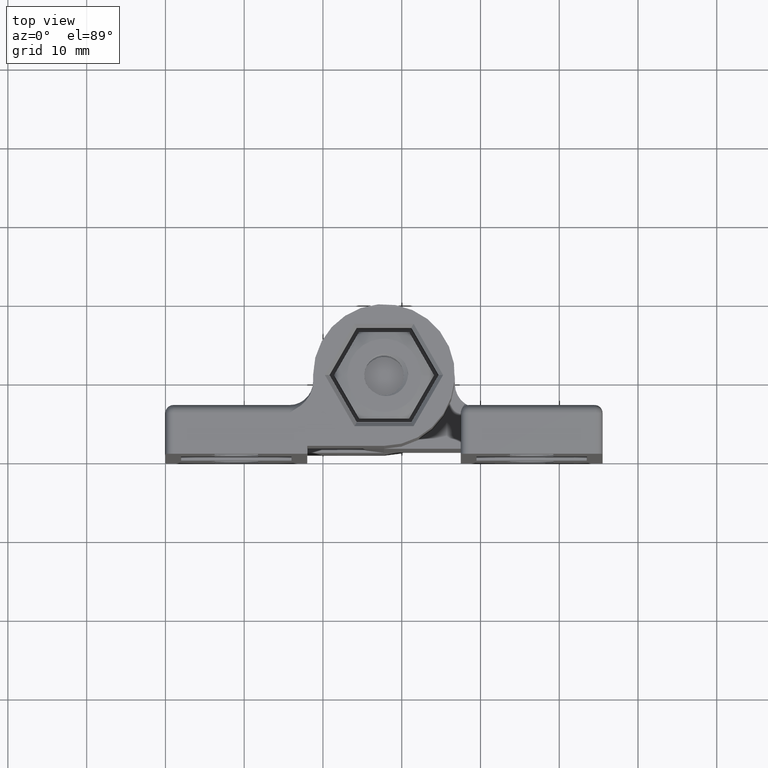
[diagram: clean part render]
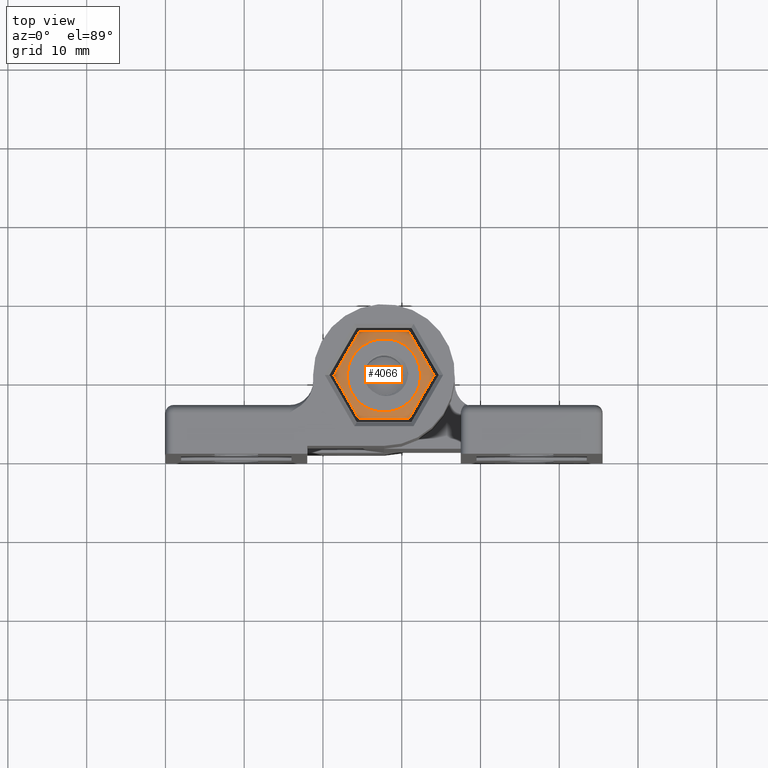
[diagram: same view with one face highlighted and labeled with its STEP entity id]
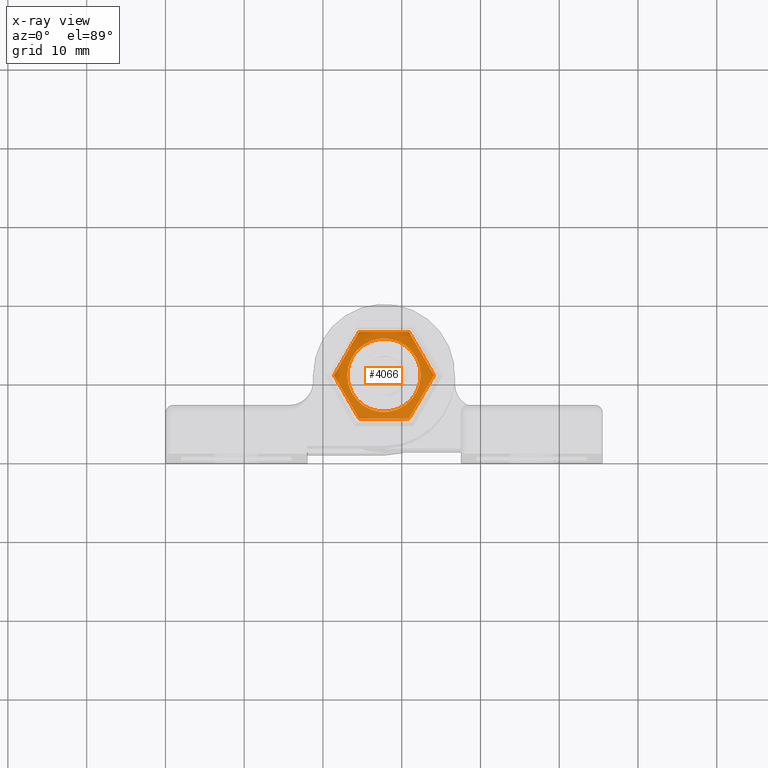
[diagram: x-ray of the same camera — body ghosted, the highlighted face saturated]
A machine part, top view. The second image highlights one B-rep face of the part: STEP entity #4066.
The next image is the same camera in x-ray: the body ghosted, the highlighted face saturated — about 0% of this face is hidden behind the body in this view.
In plain terms, the highlighted face is a freeform B-spline surface patch.
Its self-contained STEP definition (entity closure, byte-faithful):
#30=(
BOUNDED_SURFACE()
B_SPLINE_SURFACE(5,2,((#7594,#7595,#7596,#7597,#7598,#7599,#7600,#7601,
#7602),(#7603,#7604,#7605,#7606,#7607,#7608,#7609,#7610,#7611),(#7612,#7613,
#7614,#7615,#7616,#7617,#7618,#7619,#7620),(#7621,#7622,#7623,#7624,#7625,
#7626,#7627,#7628,#7629),(#7630,#7631,#7632,#7633,#7634,#7635,#7636,#7637,
#7638),(#7639,#7640,#7641,#7642,#7643,#7644,#7645,#7646,#7647),(#7648,#7649,
#7650,#7651,#7652,#7653,#7654,#7655,#7656),(#7657,#7658,#7659,#7660,#7661,
#7662,#7663,#7664,#7665),(#7666,#7667,#7668,#7669,#7670,#7671,#7672,#7673,
#7674),(#7675,#7676,#7677,#7678,#7679,#7680,#7681,#7682,#7683),(#7684,#7685,
#7686,#7687,#7688,#7689,#7690,#7691,#7692),(#7693,#7694,#7695,#7696,#7697,
#7698,#7699,#7700,#7701),(#7702,#7703,#7704,#7705,#7706,#7707,#7708,#7709,
#7710),(#7711,#7712,#7713,#7714,#7715,#7716,#7717,#7718,#7719),(#7720,#7721,
#7722,#7723,#7724,#7725,#7726,#7727,#7728)),.UNSPECIFIED.,.F.,.T.,.F.)
B_SPLINE_SURFACE_WITH_KNOTS((6,1,1,1,1,1,1,1,1,1,6),(3,2,2,2,3),(-1.,-0.9,
-0.8,-0.7,-0.6,-0.5,-0.4,-0.3,-0.2,-0.1,0.),(0.,1.5707963267949,3.14159265358979,
4.71238898038469,6.28318530717959),.UNSPECIFIED.)
GEOMETRIC_REPRESENTATION_ITEM()
RATIONAL_B_SPLINE_SURFACE(((1.,0.707106781186548,1.,0.707106781186548,1.,
0.707106781186548,1.,0.707106781186548,1.),(1.,0.707106781186548,1.,0.707106781186548,
1.,0.707106781186548,1.,0.707106781186548,1.),(1.,0.707106781186548,1.,
0.707106781186548,1.,0.707106781186548,1.,0.707106781186548,1.),(1.,0.707106781186548,
1.,0.707106781186548,1.,0.707106781186548,1.,0.707106781186548,1.),(1.,
0.707106781186548,1.,0.707106781186548,1.,0.707106781186548,1.,0.707106781186548,
1.),(1.,0.707106781186548,1.,0.707106781186548,1.,0.707106781186548,1.,
0.707106781186548,1.),(1.,0.707106781186548,1.,0.707106781186548,1.,0.707106781186548,
1.,0.707106781186548,1.),(1.,0.707106781186548,1.,0.707106781186548,1.,
0.707106781186548,1.,0.707106781186548,1.),(1.,0.707106781186548,1.,0.707106781186548,
1.,0.707106781186548,1.,0.707106781186548,1.),(1.,0.707106781186548,1.,
0.707106781186548,1.,0.707106781186548,1.,0.707106781186548,1.),(1.,0.707106781186548,
1.,0.707106781186548,1.,0.707106781186548,1.,0.707106781186548,1.),(1.,
0.707106781186548,1.,0.707106781186548,1.,0.707106781186548,1.,0.707106781186548,
1.),(1.,0.707106781186548,1.,0.707106781186548,1.,0.707106781186548,1.,
0.707106781186548,1.),(1.,0.707106781186548,1.,0.707106781186548,1.,0.707106781186548,
1.,0.707106781186548,1.),(1.,0.707106781186548,1.,0.707106781186548,1.,
0.707106781186548,1.,0.707106781186548,1.)))
REPRESENTATION_ITEM('')
SURFACE()
);
#204=B_SPLINE_CURVE_WITH_KNOTS('',3,(#7731,#7732,#7733,#7734,#7735,#7736,
#7737,#7738,#7739,#7740,#7741,#7742,#7743,#7744,#7745,#7746,#7747,#7748,
#7749,#7750,#7751,#7752,#7753,#7754,#7755,#7756,#7757,#7758,#7759,#7760),
 .UNSPECIFIED.,.F.,.F.,(4,2,2,2,2,2,2,2,2,2,2,2,2,2,4),(-0.57262143947361,
-0.544323975707917,-0.509345984304619,-0.405398877690966,-0.354201182749077,
-0.320544612601947,-0.303102496328077,-0.292069094247138,-0.281915798303013,
-0.268778627106336,-0.243616223191977,-0.19038933576326,-0.0875683167784504,
-0.0373943914692187,0.),.UNSPECIFIED.);
#205=B_SPLINE_CURVE_WITH_KNOTS('',3,(#7762,#7763,#7764,#7765,#7766,#7767,
#7768,#7769,#7770,#7771,#7772,#7773,#7774,#7775,#7776,#7777,#7778,#7779,
#7780,#7781,#7782,#7783,#7784,#7785,#7786,#7787,#7788,#7789,#7790,#7791),
 .UNSPECIFIED.,.F.,.F.,(4,2,2,2,2,2,2,2,2,2,2,2,2,2,4),(-0.573362088269785,
-0.542602238559122,-0.50381871411048,-0.396212267046608,-0.338543031039156,
-0.317844158797585,-0.299883978042234,-0.287563767466687,-0.275705419056114,
-0.260109085149373,-0.230192115821317,-0.168206720946711,-0.0638537788719701,
-0.0285646964578487,0.),.UNSPECIFIED.);
#206=B_SPLINE_CURVE_WITH_KNOTS('',3,(#7793,#7794,#7795,#7796,#7797,#7798,
#7799,#7800,#7801,#7802,#7803,#7804,#7805,#7806,#7807,#7808,#7809,#7810,
#7811,#7812,#7813,#7814,#7815,#7816,#7817,#7818,#7819,#7820,#7821,#7822),
 .UNSPECIFIED.,.F.,.F.,(4,2,2,2,2,2,2,2,2,2,2,2,2,2,4),(-0.571678990613345,
-0.543799968565629,-0.509457830151419,-0.408440109942139,-0.355714174820462,
-0.321221593944074,-0.303503333603937,-0.292439259344689,-0.282358214313158,
-0.269453880748804,-0.244930116960784,-0.1936685102723,-0.0937651915670148,
-0.0395470754258455,0.),.UNSPECIFIED.);
#207=B_SPLINE_CURVE_WITH_KNOTS('',3,(#7824,#7825,#7826,#7827,#7828,#7829,
#7830,#7831,#7832,#7833,#7834,#7835,#7836,#7837,#7838,#7839,#7840,#7841,
#7842,#7843,#7844,#7845,#7846,#7847,#7848,#7849,#7850,#7851,#7852,#7853),
 .UNSPECIFIED.,.F.,.F.,(4,2,2,2,2,2,2,2,2,2,2,2,2,2,4),(-0.572621439472506,
-0.544323975707105,-0.509345984304233,-0.405398877692442,-0.354201182749778,
-0.320544612602306,-0.303102496328308,-0.292069094247381,-0.281915798303355,
-0.268778627106843,-0.243616223192848,-0.190389335765097,-0.0875683167820839,
-0.0373943914705066,0.),.UNSPECIFIED.);
#208=B_SPLINE_CURVE_WITH_KNOTS('',3,(#7855,#7856,#7857,#7858,#7859,#7860,
#7861,#7862,#7863,#7864,#7865,#7866,#7867,#7868,#7869,#7870,#7871,#7872,
#7873,#7874,#7875,#7876,#7877,#7878,#7879,#7880,#7881,#7882,#7883,#7884),
 .UNSPECIFIED.,.F.,.F.,(4,2,2,2,2,2,2,2,2,2,2,2,2,2,4),(-0.573362088269755,
-0.54260223856052,-0.503818714114182,-0.396212267048592,-0.338543031040155,
-0.317844158798268,-0.299883978042658,-0.287563767467003,-0.275705419056472,
-0.260109085149841,-0.230192115822064,-0.168206720948217,-0.0638537788723546,
-0.028564696458006,0.),.UNSPECIFIED.);
#209=B_SPLINE_CURVE_WITH_KNOTS('',3,(#7885,#7886,#7887,#7888,#7889,#7890,
#7891,#7892,#7893,#7894,#7895,#7896,#7897,#7898,#7899,#7900,#7901,#7902,
#7903,#7904,#7905,#7906,#7907,#7908,#7909,#7910,#7911,#7912,#7913,#7914),
 .UNSPECIFIED.,.F.,.F.,(4,2,2,2,2,2,2,2,2,2,2,2,2,2,4),(-0.571678990614367,
-0.543799968567537,-0.509457830154743,-0.408440109952833,-0.355714174826327,
-0.321221593947555,-0.303503333606371,-0.292439259346873,-0.28235821431552,
-0.269453880751784,-0.244930116965342,-0.19366851028104,-0.0937651915839698,
-0.0395470754316669,0.),.UNSPECIFIED.);
#210=B_SPLINE_CURVE_WITH_KNOTS('',3,(#7915,#7916,#7917,#7918,#7919,#7920,
#7921),.UNSPECIFIED.,.F.,.F.,(4,3,4),(0.,0.838384019627205,1.),
 .UNSPECIFIED.);
#632=FACE_OUTER_BOUND('',#831,.T.);
#831=EDGE_LOOP('',(#3143,#3144,#3145,#3146,#3147,#3148,#3149,#3150,#3151));
#1518=CIRCLE('',#4293,4.65860693610695);
#1731=VERTEX_POINT('',#7592);
#1732=VERTEX_POINT('',#7729);
#1733=VERTEX_POINT('',#7730);
#1734=VERTEX_POINT('',#7761);
#1735=VERTEX_POINT('',#7792);
#1736=VERTEX_POINT('',#7823);
#1737=VERTEX_POINT('',#7854);
#2290=EDGE_CURVE('',#1731,#1731,#1518,.T.);
#2291=EDGE_CURVE('',#1732,#1733,#204,.T.);
#2292=EDGE_CURVE('',#1734,#1732,#205,.T.);
#2293=EDGE_CURVE('',#1735,#1734,#206,.T.);
#2294=EDGE_CURVE('',#1736,#1735,#207,.T.);
#2295=EDGE_CURVE('',#1737,#1736,#208,.T.);
#2296=EDGE_CURVE('',#1733,#1737,#209,.T.);
#2297=EDGE_CURVE('',#1731,#1733,#210,.T.);
#3143=ORIENTED_EDGE('',*,*,#2291,.F.);
#3144=ORIENTED_EDGE('',*,*,#2292,.F.);
#3145=ORIENTED_EDGE('',*,*,#2293,.F.);
#3146=ORIENTED_EDGE('',*,*,#2294,.F.);
#3147=ORIENTED_EDGE('',*,*,#2295,.F.);
#3148=ORIENTED_EDGE('',*,*,#2296,.F.);
#3149=ORIENTED_EDGE('',*,*,#2297,.F.);
#3150=ORIENTED_EDGE('',*,*,#2290,.F.);
#3151=ORIENTED_EDGE('',*,*,#2297,.T.);
#4066=ADVANCED_FACE('',(#632),#30,.T.);
#4293=AXIS2_PLACEMENT_3D('',#7593,#4863,#4864);
#4863=DIRECTION('center_axis',(0.,0.,-1.));
#4864=DIRECTION('ref_axis',(1.,0.,0.));
#7592=CARTESIAN_POINT('',(4.65860693610695,0.,-2.9));
#7593=CARTESIAN_POINT('Origin',(0.,0.,-2.9));
#7594=CARTESIAN_POINT('Ctrl Pts',(6.35085296108588,0.,-2.04222966380796));
#7595=CARTESIAN_POINT('Ctrl Pts',(6.35085296108588,6.35085296108588,-2.04222966380796));
#7596=CARTESIAN_POINT('Ctrl Pts',(0.,6.35085296108588,-2.04222966380796));
#7597=CARTESIAN_POINT('Ctrl Pts',(-6.35085296108588,6.35085296108588,-2.04222966380796));
#7598=CARTESIAN_POINT('Ctrl Pts',(-6.35085296108588,0.,-2.04222966380796));
#7599=CARTESIAN_POINT('Ctrl Pts',(-6.35085296108588,-6.35085296108588,-2.04222966380796));
#7600=CARTESIAN_POINT('Ctrl Pts',(0.,-6.35085296108588,-2.04222966380796));
#7601=CARTESIAN_POINT('Ctrl Pts',(6.35085296108588,-6.35085296108588,-2.04222966380796));
#7602=CARTESIAN_POINT('Ctrl Pts',(6.35085296108588,0.,-2.04222966380796));
#7603=CARTESIAN_POINT('Ctrl Pts',(6.33857400149862,0.,-2.07148277389668));
#7604=CARTESIAN_POINT('Ctrl Pts',(6.33857400149862,6.33857400149862,-2.07148277389668));
#7605=CARTESIAN_POINT('Ctrl Pts',(0.,6.33857400149862,-2.07148277389668));
#7606=CARTESIAN_POINT('Ctrl Pts',(-6.33857400149862,6.33857400149862,-2.07148277389668));
#7607=CARTESIAN_POINT('Ctrl Pts',(-6.33857400149862,0.,-2.07148277389668));
#7608=CARTESIAN_POINT('Ctrl Pts',(-6.33857400149862,-6.33857400149862,-2.07148277389668));
#7609=CARTESIAN_POINT('Ctrl Pts',(0.,-6.33857400149862,-2.07148277389668));
#7610=CARTESIAN_POINT('Ctrl Pts',(6.33857400149862,-6.33857400149862,-2.07148277389668));
#7611=CARTESIAN_POINT('Ctrl Pts',(6.33857400149862,0.,-2.07148277389668));
#7612=CARTESIAN_POINT('Ctrl Pts',(6.31208573900583,0.,-2.12890614314292));
#7613=CARTESIAN_POINT('Ctrl Pts',(6.31208573900583,6.31208573900583,-2.12890614314292));
#7614=CARTESIAN_POINT('Ctrl Pts',(0.,6.31208573900583,-2.12890614314292));
#7615=CARTESIAN_POINT('Ctrl Pts',(-6.31208573900583,6.31208573900583,-2.12890614314292));
#7616=CARTESIAN_POINT('Ctrl Pts',(-6.31208573900583,0.,-2.12890614314292));
#7617=CARTESIAN_POINT('Ctrl Pts',(-6.31208573900583,-6.31208573900583,-2.12890614314292));
#7618=CARTESIAN_POINT('Ctrl Pts',(0.,-6.31208573900583,-2.12890614314292));
#7619=CARTESIAN_POINT('Ctrl Pts',(6.31208573900583,-6.31208573900583,-2.12890614314292));
#7620=CARTESIAN_POINT('Ctrl Pts',(6.31208573900583,0.,-2.12890614314292));
#7621=CARTESIAN_POINT('Ctrl Pts',(6.2665622407961,0.,-2.21179260241812));
#7622=CARTESIAN_POINT('Ctrl Pts',(6.2665622407961,6.2665622407961,-2.21179260241812));
#7623=CARTESIAN_POINT('Ctrl Pts',(0.,6.2665622407961,-2.21179260241812));
#7624=CARTESIAN_POINT('Ctrl Pts',(-6.2665622407961,6.2665622407961,-2.21179260241812));
#7625=CARTESIAN_POINT('Ctrl Pts',(-6.2665622407961,0.,-2.21179260241812));
#7626=CARTESIAN_POINT('Ctrl Pts',(-6.2665622407961,-6.2665622407961,-2.21179260241812));
#7627=CARTESIAN_POINT('Ctrl Pts',(0.,-6.2665622407961,-2.21179260241812));
#7628=CARTESIAN_POINT('Ctrl Pts',(6.2665622407961,-6.2665622407961,-2.21179260241812));
#7629=CARTESIAN_POINT('Ctrl Pts',(6.2665622407961,0.,-2.21179260241812));
#7630=CARTESIAN_POINT('Ctrl Pts',(6.19409213311717,0.,-2.31570416478303));
#7631=CARTESIAN_POINT('Ctrl Pts',(6.19409213311716,6.19409213311716,-2.31570416478303));
#7632=CARTESIAN_POINT('Ctrl Pts',(0.,6.19409213311717,-2.31570416478303));
#7633=CARTESIAN_POINT('Ctrl Pts',(-6.19409213311716,6.19409213311716,-2.31570416478303));
#7634=CARTESIAN_POINT('Ctrl Pts',(-6.19409213311717,0.,-2.31570416478303));
#7635=CARTESIAN_POINT('Ctrl Pts',(-6.19409213311716,-6.19409213311716,-2.31570416478303));
#7636=CARTESIAN_POINT('Ctrl Pts',(0.,-6.19409213311717,-2.31570416478303));
#7637=CARTESIAN_POINT('Ctrl Pts',(6.19409213311716,-6.19409213311716,-2.31570416478303));
#7638=CARTESIAN_POINT('Ctrl Pts',(6.19409213311717,0.,-2.31570416478303));
#7639=CARTESIAN_POINT('Ctrl Pts',(6.08259496435136,0.,-2.43386414540648));
#7640=CARTESIAN_POINT('Ctrl Pts',(6.08259496435136,6.08259496435136,-2.43386414540648));
#7641=CARTESIAN_POINT('Ctrl Pts',(0.,6.08259496435136,-2.43386414540648));
#7642=CARTESIAN_POINT('Ctrl Pts',(-6.08259496435136,6.08259496435136,-2.43386414540648));
#7643=CARTESIAN_POINT('Ctrl Pts',(-6.08259496435136,0.,-2.43386414540648));
#7644=CARTESIAN_POINT('Ctrl Pts',(-6.08259496435136,-6.08259496435136,-2.43386414540648));
#7645=CARTESIAN_POINT('Ctrl Pts',(0.,-6.08259496435136,-2.43386414540648));
#7646=CARTESIAN_POINT('Ctrl Pts',(6.08259496435136,-6.08259496435136,-2.43386414540648));
#7647=CARTESIAN_POINT('Ctrl Pts',(6.08259496435136,0.,-2.43386414540648));
#7648=CARTESIAN_POINT('Ctrl Pts',(5.94848573517296,0.,-2.53933959968525));
#7649=CARTESIAN_POINT('Ctrl Pts',(5.94848573517296,5.94848573517296,-2.53933959968525));
#7650=CARTESIAN_POINT('Ctrl Pts',(0.,5.94848573517296,-2.53933959968525));
#7651=CARTESIAN_POINT('Ctrl Pts',(-5.94848573517296,5.94848573517296,-2.53933959968525));
#7652=CARTESIAN_POINT('Ctrl Pts',(-5.94848573517296,0.,-2.53933959968525));
#7653=CARTESIAN_POINT('Ctrl Pts',(-5.94848573517296,-5.94848573517296,-2.53933959968525));
#7654=CARTESIAN_POINT('Ctrl Pts',(0.,-5.94848573517296,-2.53933959968525));
#7655=CARTESIAN_POINT('Ctrl Pts',(5.94848573517296,-5.94848573517296,-2.53933959968525));
#7656=CARTESIAN_POINT('Ctrl Pts',(5.94848573517296,0.,-2.53933959968525));
#7657=CARTESIAN_POINT('Ctrl Pts',(5.79017712050745,0.,-2.63124009718702));
#7658=CARTESIAN_POINT('Ctrl Pts',(5.79017712050744,5.79017712050744,-2.63124009718702));
#7659=CARTESIAN_POINT('Ctrl Pts',(0.,5.79017712050745,-2.63124009718702));
#7660=CARTESIAN_POINT('Ctrl Pts',(-5.79017712050744,5.79017712050744,-2.63124009718702));
#7661=CARTESIAN_POINT('Ctrl Pts',(-5.79017712050745,0.,-2.63124009718702));
#7662=CARTESIAN_POINT('Ctrl Pts',(-5.79017712050744,-5.79017712050744,-2.63124009718702));
#7663=CARTESIAN_POINT('Ctrl Pts',(0.,-5.79017712050745,-2.63124009718702));
#7664=CARTESIAN_POINT('Ctrl Pts',(5.79017712050744,-5.79017712050744,-2.63124009718702));
#7665=CARTESIAN_POINT('Ctrl Pts',(5.79017712050745,0.,-2.63124009718702));
#7666=CARTESIAN_POINT('Ctrl Pts',(5.60728287225348,0.,-2.70934896706757));
#7667=CARTESIAN_POINT('Ctrl Pts',(5.60728287225348,5.60728287225348,-2.70934896706757));
#7668=CARTESIAN_POINT('Ctrl Pts',(0.,5.60728287225348,-2.70934896706757));
#7669=CARTESIAN_POINT('Ctrl Pts',(-5.60728287225348,5.60728287225348,-2.70934896706757));
#7670=CARTESIAN_POINT('Ctrl Pts',(-5.60728287225348,0.,-2.70934896706757));
#7671=CARTESIAN_POINT('Ctrl Pts',(-5.60728287225348,-5.60728287225348,-2.70934896706757));
#7672=CARTESIAN_POINT('Ctrl Pts',(0.,-5.60728287225348,-2.70934896706757));
#7673=CARTESIAN_POINT('Ctrl Pts',(5.60728287225348,-5.60728287225348,-2.70934896706757));
#7674=CARTESIAN_POINT('Ctrl Pts',(5.60728287225348,0.,-2.70934896706757));
#7675=CARTESIAN_POINT('Ctrl Pts',(5.40125786927975,0.,-2.77448234235506));
#7676=CARTESIAN_POINT('Ctrl Pts',(5.40125786927975,5.40125786927975,-2.77448234235506));
#7677=CARTESIAN_POINT('Ctrl Pts',(0.,5.40125786927975,-2.77448234235506));
#7678=CARTESIAN_POINT('Ctrl Pts',(-5.40125786927975,5.40125786927975,-2.77448234235506));
#7679=CARTESIAN_POINT('Ctrl Pts',(-5.40125786927975,0.,-2.77448234235506));
#7680=CARTESIAN_POINT('Ctrl Pts',(-5.40125786927975,-5.40125786927975,-2.77448234235506));
#7681=CARTESIAN_POINT('Ctrl Pts',(0.,-5.40125786927975,-2.77448234235506));
#7682=CARTESIAN_POINT('Ctrl Pts',(5.40125786927975,-5.40125786927975,-2.77448234235506));
#7683=CARTESIAN_POINT('Ctrl Pts',(5.40125786927975,0.,-2.77448234235506));
#7684=CARTESIAN_POINT('Ctrl Pts',(5.17406173235194,0.,-2.82773949754171));
#7685=CARTESIAN_POINT('Ctrl Pts',(5.17406173235193,5.17406173235193,-2.82773949754171));
#7686=CARTESIAN_POINT('Ctrl Pts',(0.,5.17406173235194,-2.82773949754171));
#7687=CARTESIAN_POINT('Ctrl Pts',(-5.17406173235193,5.17406173235193,-2.82773949754171));
#7688=CARTESIAN_POINT('Ctrl Pts',(-5.17406173235194,0.,-2.82773949754171));
#7689=CARTESIAN_POINT('Ctrl Pts',(-5.17406173235193,-5.17406173235193,-2.82773949754171));
#7690=CARTESIAN_POINT('Ctrl Pts',(0.,-5.17406173235194,-2.82773949754171));
#7691=CARTESIAN_POINT('Ctrl Pts',(5.17406173235193,-5.17406173235193,-2.82773949754171));
#7692=CARTESIAN_POINT('Ctrl Pts',(5.17406173235194,0.,-2.82773949754171));
#7693=CARTESIAN_POINT('Ctrl Pts',(4.97685992551532,0.,-2.86168120775111));
#7694=CARTESIAN_POINT('Ctrl Pts',(4.97685992551532,4.97685992551532,-2.86168120775111));
#7695=CARTESIAN_POINT('Ctrl Pts',(0.,4.97685992551532,-2.86168120775111));
#7696=CARTESIAN_POINT('Ctrl Pts',(-4.97685992551532,4.97685992551532,-2.86168120775111));
#7697=CARTESIAN_POINT('Ctrl Pts',(-4.97685992551532,0.,-2.86168120775111));
#7698=CARTESIAN_POINT('Ctrl Pts',(-4.97685992551532,-4.97685992551532,-2.86168120775111));
#7699=CARTESIAN_POINT('Ctrl Pts',(0.,-4.97685992551532,-2.86168120775111));
#7700=CARTESIAN_POINT('Ctrl Pts',(4.97685992551532,-4.97685992551532,-2.86168120775111));
#7701=CARTESIAN_POINT('Ctrl Pts',(4.97685992551532,0.,-2.86168120775111));
#7702=CARTESIAN_POINT('Ctrl Pts',(4.82083911394314,0.,-2.88258277680399));
#7703=CARTESIAN_POINT('Ctrl Pts',(4.82083911394314,4.82083911394314,-2.88258277680399));
#7704=CARTESIAN_POINT('Ctrl Pts',(0.,4.82083911394314,-2.88258277680399));
#7705=CARTESIAN_POINT('Ctrl Pts',(-4.82083911394314,4.82083911394314,-2.88258277680399));
#7706=CARTESIAN_POINT('Ctrl Pts',(-4.82083911394314,0.,-2.88258277680399));
#7707=CARTESIAN_POINT('Ctrl Pts',(-4.82083911394314,-4.82083911394314,-2.88258277680399));
#7708=CARTESIAN_POINT('Ctrl Pts',(0.,-4.82083911394314,-2.88258277680399));
#7709=CARTESIAN_POINT('Ctrl Pts',(4.82083911394314,-4.82083911394314,-2.88258277680399));
#7710=CARTESIAN_POINT('Ctrl Pts',(4.82083911394314,0.,-2.88258277680399));
#7711=CARTESIAN_POINT('Ctrl Pts',(4.71327591823805,0.,-2.89452611869015));
#7712=CARTESIAN_POINT('Ctrl Pts',(4.71327591823805,4.71327591823805,-2.89452611869015));
#7713=CARTESIAN_POINT('Ctrl Pts',(0.,4.71327591823805,-2.89452611869015));
#7714=CARTESIAN_POINT('Ctrl Pts',(-4.71327591823805,4.71327591823805,-2.89452611869015));
#7715=CARTESIAN_POINT('Ctrl Pts',(-4.71327591823805,0.,-2.89452611869015));
#7716=CARTESIAN_POINT('Ctrl Pts',(-4.71327591823805,-4.71327591823805,-2.89452611869015));
#7717=CARTESIAN_POINT('Ctrl Pts',(0.,-4.71327591823805,-2.89452611869015));
#7718=CARTESIAN_POINT('Ctrl Pts',(4.71327591823805,-4.71327591823805,-2.89452611869015));
#7719=CARTESIAN_POINT('Ctrl Pts',(4.71327591823805,0.,-2.89452611869015));
#7720=CARTESIAN_POINT('Ctrl Pts',(4.65860693610695,0.,-2.9));
#7721=CARTESIAN_POINT('Ctrl Pts',(4.65860693610695,4.65860693610695,-2.9));
#7722=CARTESIAN_POINT('Ctrl Pts',(0.,4.65860693610695,-2.9));
#7723=CARTESIAN_POINT('Ctrl Pts',(-4.65860693610695,4.65860693610695,-2.9));
#7724=CARTESIAN_POINT('Ctrl Pts',(-4.65860693610695,0.,-2.9));
#7725=CARTESIAN_POINT('Ctrl Pts',(-4.65860693610695,-4.65860693610695,-2.9));
#7726=CARTESIAN_POINT('Ctrl Pts',(0.,-4.65860693610695,-2.9));
#7727=CARTESIAN_POINT('Ctrl Pts',(4.65860693610695,-4.65860693610695,-2.9));
#7728=CARTESIAN_POINT('Ctrl Pts',(4.65860693610695,0.,-2.9));
#7729=CARTESIAN_POINT('',(3.17542648054294,-5.5,-2.04222966380796));
#7730=CARTESIAN_POINT('',(6.35085296108588,0.,-2.04222966380796));
#7731=CARTESIAN_POINT('Ctrl Pts',(3.17542648054294,-5.5,-2.04222966380796));
#7732=CARTESIAN_POINT('Ctrl Pts',(3.20609725998664,-5.44687665169577,-2.11529902128873));
#7733=CARTESIAN_POINT('Ctrl Pts',(3.24231549436471,-5.38414482959252,-2.1787712500344));
#7734=CARTESIAN_POINT('Ctrl Pts',(3.32970114374153,-5.23278844501948,-2.30166392813006));
#7735=CARTESIAN_POINT('Ctrl Pts',(3.38291168349234,-5.1406250870184,-2.35734952817359));
#7736=CARTESIAN_POINT('Ctrl Pts',(3.59894454172013,-4.76644520046354,-2.54052532001614));
#7737=CARTESIAN_POINT('Ctrl Pts',(3.80176106190305,-4.41515668254692,-2.61916810779838));
#7738=CARTESIAN_POINT('Ctrl Pts',(4.12953317931402,-3.84743872188669,-2.69245430277337));
#7739=CARTESIAN_POINT('Ctrl Pts',(4.24128994360014,-3.65387032805362,-2.70912559900519));
#7740=CARTESIAN_POINT('Ctrl Pts',(4.42119868982529,-3.34225923886565,-2.72770256096172));
#7741=CARTESIAN_POINT('Ctrl Pts',(4.49325705112809,-3.21745049597905,-2.7329252227476));
#7742=CARTESIAN_POINT('Ctrl Pts',(4.60170063849389,-3.02962069290645,-2.73798084382185));
#7743=CARTESIAN_POINT('Ctrl Pts',(4.63880264690886,-2.96535812927761,-2.73921009797534));
#7744=CARTESIAN_POINT('Ctrl Pts',(4.69924748764732,-2.86066459406317,-2.7404318265004));
#7745=CARTESIAN_POINT('Ctrl Pts',(4.72268865804482,-2.8200632959371,-2.74071382010829));
#7746=CARTESIAN_POINT('Ctrl Pts',(4.76766374561184,-2.74216415919616,-2.74089052249298));
#7747=CARTESIAN_POINT('Ctrl Pts',(4.78923256269402,-2.70480587215067,-2.74081445509815));
#7748=CARTESIAN_POINT('Ctrl Pts',(4.83867288034834,-2.61917273003104,-2.74027048545314));
#7749=CARTESIAN_POINT('Ctrl Pts',(4.86659284858655,-2.57081392649375,-2.73969334985237));
#7750=CARTESIAN_POINT('Ctrl Pts',(4.94788592399048,-2.43001018959061,-2.73721074807385));
#7751=CARTESIAN_POINT('Ctrl Pts',(5.00153796207089,-2.33708213370872,-2.73456153976055));
#7752=CARTESIAN_POINT('Ctrl Pts',(5.1678455635875,-2.04902891819703,-2.72291716352623));
#7753=CARTESIAN_POINT('Ctrl Pts',(5.28386286097783,-1.84808106456016,-2.70983913701288));
#7754=CARTESIAN_POINT('Ctrl Pts',(5.61412338020857,-1.27605306551845,-2.65138579515207));
#7755=CARTESIAN_POINT('Ctrl Pts',(5.81241617675571,-0.932599867123871,-2.58921708283841));
#7756=CARTESIAN_POINT('Ctrl Pts',(6.05613699619407,-0.510463024994316,-2.43557522731296));
#7757=CARTESIAN_POINT('Ctrl Pts',(6.13649892880508,-0.371272074717622,-2.36993802142568));
#7758=CARTESIAN_POINT('Ctrl Pts',(6.26126841968993,-0.155164977270562,-2.2167856198275));
#7759=CARTESIAN_POINT('Ctrl Pts',(6.31078072542484,-0.0694071481378177,
-2.13769683372274));
#7760=CARTESIAN_POINT('Ctrl Pts',(6.35085296108588,-1.53002610581154E-14,
-2.04222966380795));
#7761=CARTESIAN_POINT('',(-3.17542648054294,-5.5,-2.04222966380796));
#7762=CARTESIAN_POINT('Ctrl Pts',(-3.17542648054294,-5.5,-2.04222966380796));
#7763=CARTESIAN_POINT('Ctrl Pts',(-3.10941460270654,-5.5,-2.12086225135695));
#7764=CARTESIAN_POINT('Ctrl Pts',(-3.03056396359745,-5.5,-2.18837986658838));
#7765=CARTESIAN_POINT('Ctrl Pts',(-2.83820330517662,-5.5,-2.31904744173411));
#7766=CARTESIAN_POINT('Ctrl Pts',(-2.71946506781589,-5.49999999998613,-2.37752604960868));
#7767=CARTESIAN_POINT('Ctrl Pts',(-2.26392745866593,-5.49999999998613,-2.55705838709527));
#7768=CARTESIAN_POINT('Ctrl Pts',(-1.84522879857109,-5.5,-2.6319038563935));
#7769=CARTESIAN_POINT('Ctrl Pts',(-1.15394532373816,-5.5,-2.70224599155826));
#7770=CARTESIAN_POINT('Ctrl Pts',(-0.903759767434588,-5.5,-2.71816764176397));
#7771=CARTESIAN_POINT('Ctrl Pts',(-0.574995694142024,-5.5,-2.73137051278807));
#7772=CARTESIAN_POINT('Ctrl Pts',(-0.48785255431848,-5.5,-2.73411330356037));
#7773=CARTESIAN_POINT('Ctrl Pts',(-0.325590332937767,-5.5,-2.73793577524451));
#7774=CARTESIAN_POINT('Ctrl Pts',(-0.250025803011682,-5.50000000000437,
-2.73919643795335));
#7775=CARTESIAN_POINT('Ctrl Pts',(-0.122902983244997,-5.50000000000437,
-2.74048115947136));
#7776=CARTESIAN_POINT('Ctrl Pts',(-0.0711251450602564,-5.5,-2.74077056689951));
#7777=CARTESIAN_POINT('Ctrl Pts',(0.0303860883781593,-5.5,-2.74088414330225));
#7778=CARTESIAN_POINT('Ctrl Pts',(0.0802194758754642,-5.5,-2.74072545403366));
#7779=CARTESIAN_POINT('Ctrl Pts',(0.195482035525013,-5.5,-2.73985960186262));
#7780=CARTESIAN_POINT('Ctrl Pts',(0.26106648363656,-5.5,-2.73899388405093));
#7781=CARTESIAN_POINT('Ctrl Pts',(0.452115492224943,-5.5,-2.73535167757837));
#7782=CARTESIAN_POINT('Ctrl Pts',(0.578516606352763,-5.5,-2.73152679784278));
#7783=CARTESIAN_POINT('Ctrl Pts',(0.964025350556601,-5.5,-2.71494664175854));
#7784=CARTESIAN_POINT('Ctrl Pts',(1.23499359928215,-5.5,-2.69637554054318));
#7785=CARTESIAN_POINT('Ctrl Pts',(1.93037096737045,-5.5,-2.61776160831778));
#7786=CARTESIAN_POINT('Ctrl Pts',(2.33225068805801,-5.49999999999945,-2.53914763672257));
#7787=CARTESIAN_POINT('Ctrl Pts',(2.7615068035999,-5.49999999999945,-2.35681577622668));
#7788=CARTESIAN_POINT('Ctrl Pts',(2.86761389179208,-5.50000000000001,-2.3012069371291));
#7789=CARTESIAN_POINT('Ctrl Pts',(3.04193415353021,-5.50000000000001,-2.1785206681018));
#7790=CARTESIAN_POINT('Ctrl Pts',(3.11420600318941,-5.50000000000001,-2.11515479036204));
#7791=CARTESIAN_POINT('Ctrl Pts',(3.17542648054293,-5.50000000000001,-2.04222966380795));
#7792=CARTESIAN_POINT('',(-6.35085296108588,3.33066907387547E-15,-2.04222966380796));
#7793=CARTESIAN_POINT('Ctrl Pts',(-6.35085296108588,3.33066907387547E-15,
-2.04222966380796));
#7794=CARTESIAN_POINT('Ctrl Pts',(-6.32056557081746,-0.0524592987735674,
-2.11438564376097));
#7795=CARTESIAN_POINT('Ctrl Pts',(-6.28486786713344,-0.114289535267834,
-2.17718312162752));
#7796=CARTESIAN_POINT('Ctrl Pts',(-6.19890676926569,-0.263178524249163,
-2.29876653120648));
#7797=CARTESIAN_POINT('Ctrl Pts',(-6.14668641502761,-0.353626831722488,
-2.35396357143597));
#7798=CARTESIAN_POINT('Ctrl Pts',(-5.9361075213326,-0.718360174603897,-2.53468295227136));
#7799=CARTESIAN_POINT('Ctrl Pts',(-5.73981179763789,-1.05835434060814,-2.61352697633852));
#7800=CARTESIAN_POINT('Ctrl Pts',(-5.41351311333735,-1.62352024025954,-2.68971167121623));
#7801=CARTESIAN_POINT('Ctrl Pts',(-5.29752767742777,-1.82441290819274,-2.7075326979752));
#7802=CARTESIAN_POINT('Ctrl Pts',(-5.11171615017713,-2.14624791402282,-2.72719402190904));
#7803=CARTESIAN_POINT('Ctrl Pts',(-5.03746476883874,-2.27485507903309,-2.73267602899944));
#7804=CARTESIAN_POINT('Ctrl Pts',(-4.92612231158351,-2.46770587203871,-2.73792952136714));
#7805=CARTESIAN_POINT('Ctrl Pts',(-4.88824602188613,-2.53330953020551,-2.73919455013453));
#7806=CARTESIAN_POINT('Ctrl Pts',(-4.8268525370028,-2.63964616527714,-2.7404354529282));
#7807=CARTESIAN_POINT('Ctrl Pts',(-4.80323148029192,-2.68055903562012,-2.74071813246692));
#7808=CARTESIAN_POINT('Ctrl Pts',(-4.75812617794154,-2.75868371098174,-2.74088973878513));
#7809=CARTESIAN_POINT('Ctrl Pts',(-4.73660668403411,-2.79595656778256,-2.74081153972857));
#7810=CARTESIAN_POINT('Ctrl Pts',(-4.68757652829828,-2.88087928862004,-2.74026764686416));
#7811=CARTESIAN_POINT('Ctrl Pts',(-4.66001877503156,-2.92861071741698,-2.73969893218398));
#7812=CARTESIAN_POINT('Ctrl Pts',(-4.580188700928,-3.06688046173633,-2.73727407651087));
#7813=CARTESIAN_POINT('Ctrl Pts',(-4.52765410762255,-3.15787304649981,-2.7347091191892));
#7814=CARTESIAN_POINT('Ctrl Pts',(-4.36608572101477,-3.43771770100141,-2.72356427944772));
#7815=CARTESIAN_POINT('Ctrl Pts',(-4.2540439056045,-3.63177981786425,-2.7112095497336));
#7816=CARTESIAN_POINT('Ctrl Pts',(-3.93251658201385,-4.1886814783449,-2.65619638110467));
#7817=CARTESIAN_POINT('Ctrl Pts',(-3.74069681708343,-4.52092305744822,-2.59816840298367));
#7818=CARTESIAN_POINT('Ctrl Pts',(-3.49367966395746,-4.94876931700342,-2.45365050897197));
#7819=CARTESIAN_POINT('Ctrl Pts',(-3.40555133595097,-5.10141205834884,-2.38607899115885));
#7820=CARTESIAN_POINT('Ctrl Pts',(-3.27073499941733,-5.33492080291541,-2.22584244833342));
#7821=CARTESIAN_POINT('Ctrl Pts',(-3.21780555569046,-5.42659728866672,-2.14319259490473));
#7822=CARTESIAN_POINT('Ctrl Pts',(-3.17542648054294,-5.49999999999999,-2.04222966380797));
#7823=CARTESIAN_POINT('',(-3.17542648054294,5.5,-2.04222966380796));
#7824=CARTESIAN_POINT('Ctrl Pts',(-3.17542648054294,5.5,-2.04222966380796));
#7825=CARTESIAN_POINT('Ctrl Pts',(-3.20609725998641,5.44687665169618,-2.11529902128817));
#7826=CARTESIAN_POINT('Ctrl Pts',(-3.24231549436416,5.38414482959347,-2.17877125003344));
#7827=CARTESIAN_POINT('Ctrl Pts',(-3.32970114374012,5.23278844502191,-2.30166392812832));
#7828=CARTESIAN_POINT('Ctrl Pts',(-3.38291168349035,5.14062508702184,-2.35734952817157));
#7829=CARTESIAN_POINT('Ctrl Pts',(-3.59894454171489,4.76644520047262,-2.54052532001269));
#7830=CARTESIAN_POINT('Ctrl Pts',(-3.8017610618939,4.41515668256275,-2.61916810779506));
#7831=CARTESIAN_POINT('Ctrl Pts',(-4.12953317930384,3.84743872190431,-2.69245430277172));
#7832=CARTESIAN_POINT('Ctrl Pts',(-4.24128994359228,3.65387032806724,-2.7091255990042));
#7833=CARTESIAN_POINT('Ctrl Pts',(-4.42119868982054,3.34225923887388,-2.72770256096135));
#7834=CARTESIAN_POINT('Ctrl Pts',(-4.49325705112438,3.21745049598546,-2.73292522274738));
#7835=CARTESIAN_POINT('Ctrl Pts',(-4.60170063849164,3.02962069291034,-2.73798084382177));
#7836=CARTESIAN_POINT('Ctrl Pts',(-4.63880264690704,2.96535812928074,-2.7392100979753));
#7837=CARTESIAN_POINT('Ctrl Pts',(-4.69924748764603,2.86066459406541,-2.74043182650039));
#7838=CARTESIAN_POINT('Ctrl Pts',(-4.7226886580436,2.8200632959392,-2.74071382010828));
#7839=CARTESIAN_POINT('Ctrl Pts',(-4.76766374561071,2.74216415919811,-2.74089052249298));
#7840=CARTESIAN_POINT('Ctrl Pts',(-4.78923256269287,2.70480587215265,-2.74081445509816));
#7841=CARTESIAN_POINT('Ctrl Pts',(-4.83867288034707,2.61917273003323,-2.74027048545316));
#7842=CARTESIAN_POINT('Ctrl Pts',(-4.86659284858501,2.57081392649641,-2.7396933498524));
#7843=CARTESIAN_POINT('Ctrl Pts',(-4.94788592398808,2.43001018959477,-2.73721074807395));
#7844=CARTESIAN_POINT('Ctrl Pts',(-5.00153796206789,2.33708213371392,-2.73456153976072));
#7845=CARTESIAN_POINT('Ctrl Pts',(-5.16784556358224,2.04902891820615,-2.72291716352671));
#7846=CARTESIAN_POINT('Ctrl Pts',(-5.28386286097073,1.84808106457244,-2.70983913701375));
#7847=CARTESIAN_POINT('Ctrl Pts',(-5.61412338019677,1.27605306553887,-2.6513857951549));
#7848=CARTESIAN_POINT('Ctrl Pts',(-5.81241617673997,0.932599867151128,-2.58921708284375));
#7849=CARTESIAN_POINT('Ctrl Pts',(-6.05613699618025,0.510463025018243,-2.4355752273239));
#7850=CARTESIAN_POINT('Ctrl Pts',(-6.13649892879576,0.37127207473376,-2.36993802143541));
#7851=CARTESIAN_POINT('Ctrl Pts',(-6.26126841968652,0.155164977276446,-2.21678561983295));
#7852=CARTESIAN_POINT('Ctrl Pts',(-6.31078072542346,0.0694071481401995,
-2.13769683372603));
#7853=CARTESIAN_POINT('Ctrl Pts',(-6.35085296108588,6.06285854853894E-15,
-2.04222966380796));
#7854=CARTESIAN_POINT('',(3.17542648054294,5.5,-2.04222966380796));
#7855=CARTESIAN_POINT('Ctrl Pts',(3.17542648054294,5.5,-2.04222966380796));
#7856=CARTESIAN_POINT('Ctrl Pts',(3.10941460270959,5.5,-2.12086225135331));
#7857=CARTESIAN_POINT('Ctrl Pts',(3.03056396360472,5.5,-2.18837986658214));
#7858=CARTESIAN_POINT('Ctrl Pts',(2.83820330519565,5.5,-2.31904744172281));
#7859=CARTESIAN_POINT('Ctrl Pts',(2.71946506784324,5.49999999998613,-2.37752604959563));
#7860=CARTESIAN_POINT('Ctrl Pts',(2.26392745869803,5.49999999998613,-2.55705838708894));
#7861=CARTESIAN_POINT('Ctrl Pts',(1.8452287985951,5.5,-2.63190385639016));
#7862=CARTESIAN_POINT('Ctrl Pts',(1.15394532375316,5.5,-2.70224599155722));
#7863=CARTESIAN_POINT('Ctrl Pts',(0.903759767445798,5.5,-2.71816764176339));
#7864=CARTESIAN_POINT('Ctrl Pts',(0.574995694148831,5.5,-2.73137051278784));
#7865=CARTESIAN_POINT('Ctrl Pts',(0.487852554324225,5.5,-2.73411330356021));
#7866=CARTESIAN_POINT('Ctrl Pts',(0.325590332941654,5.5,-2.73793577524444));
#7867=CARTESIAN_POINT('Ctrl Pts',(0.250025803014723,5.50000000000437,-2.73919643795331));
#7868=CARTESIAN_POINT('Ctrl Pts',(0.122902983247693,5.50000000000437,-2.74048115947134));
#7869=CARTESIAN_POINT('Ctrl Pts',(0.0711251450629902,5.5,-2.7407705668995));
#7870=CARTESIAN_POINT('Ctrl Pts',(-0.0303860883758273,5.5,-2.74088414330226));
#7871=CARTESIAN_POINT('Ctrl Pts',(-0.0802194758730708,5.5,-2.74072545403368));
#7872=CARTESIAN_POINT('Ctrl Pts',(-0.19548203552224,5.5,-2.73985960186265));
#7873=CARTESIAN_POINT('Ctrl Pts',(-0.261066483633238,5.5,-2.73899388405098));
#7874=CARTESIAN_POINT('Ctrl Pts',(-0.452115492219755,5.5,-2.7353516775785));
#7875=CARTESIAN_POINT('Ctrl Pts',(-0.57851660634633,5.5,-2.73152679784299));
#7876=CARTESIAN_POINT('Ctrl Pts',(-0.964025350545657,5.5,-2.71494664175914));
#7877=CARTESIAN_POINT('Ctrl Pts',(-1.23499359926735,5.5,-2.6963755405443));
#7878=CARTESIAN_POINT('Ctrl Pts',(-1.93037096735692,5.5,-2.61776160832025));
#7879=CARTESIAN_POINT('Ctrl Pts',(-2.33225068805017,5.49999999999945,-2.53914763672515));
#7880=CARTESIAN_POINT('Ctrl Pts',(-2.76150680359684,5.49999999999945,-2.35681577622823));
#7881=CARTESIAN_POINT('Ctrl Pts',(-2.86761389178994,5.5,-2.30120693713043));
#7882=CARTESIAN_POINT('Ctrl Pts',(-3.04193415352943,5.5,-2.1785206681025));
#7883=CARTESIAN_POINT('Ctrl Pts',(-3.11420600318907,5.5,-2.11515479036244));
#7884=CARTESIAN_POINT('Ctrl Pts',(-3.17542648054294,5.5,-2.04222966380796));
#7885=CARTESIAN_POINT('Ctrl Pts',(6.35085296108588,-5.41002566180485E-15,
-2.04222966380796));
#7886=CARTESIAN_POINT('Ctrl Pts',(6.32056557081861,0.0524592987715675,-2.11438564375822));
#7887=CARTESIAN_POINT('Ctrl Pts',(6.28486786713615,0.114289535263135,-2.17718312162274));
#7888=CARTESIAN_POINT('Ctrl Pts',(6.19890676927268,0.263178524237069,-2.29876653119777));
#7889=CARTESIAN_POINT('Ctrl Pts',(6.14668641503754,0.353626831705301,-2.3539635714258));
#7890=CARTESIAN_POINT('Ctrl Pts',(5.93610752135877,0.718360174558567,-2.53468295225377));
#7891=CARTESIAN_POINT('Ctrl Pts',(5.73981179768339,1.05835434052932,-2.61352697632144));
#7892=CARTESIAN_POINT('Ctrl Pts',(5.41351311338823,1.62352024017141,-2.68971167120772));
#7893=CARTESIAN_POINT('Ctrl Pts',(5.29752767746695,1.82441290812488,-2.7075326979701));
#7894=CARTESIAN_POINT('Ctrl Pts',(5.1117161502008,2.14624791398183,-2.72719402190716));
#7895=CARTESIAN_POINT('Ctrl Pts',(5.03746476885709,2.2748550790013,-2.73267602899834));
#7896=CARTESIAN_POINT('Ctrl Pts',(4.92612231159441,2.46770587201982,-2.73792952136675));
#7897=CARTESIAN_POINT('Ctrl Pts',(4.88824602189474,2.53330953019061,-2.73919455013429));
#7898=CARTESIAN_POINT('Ctrl Pts',(4.82685253700909,2.63964616526625,-2.7404354529281));
#7899=CARTESIAN_POINT('Ctrl Pts',(4.80323148029785,2.68055903560985,-2.74071813246687));
#7900=CARTESIAN_POINT('Ctrl Pts',(4.75812617794683,2.75868371097256,-2.74088973878513));
#7901=CARTESIAN_POINT('Ctrl Pts',(4.73660668403952,2.79595656777319,-2.74081153972861));
#7902=CARTESIAN_POINT('Ctrl Pts',(4.68757652830478,2.88087928860879,-2.74026764686427));
#7903=CARTESIAN_POINT('Ctrl Pts',(4.66001877503903,2.92861071740405,-2.73969893218415));
#7904=CARTESIAN_POINT('Ctrl Pts',(4.58018870093912,3.06688046171706,-2.73727407651131));
#7905=CARTESIAN_POINT('Ctrl Pts',(4.52765410763643,3.15787304647576,-2.73470911918994));
#7906=CARTESIAN_POINT('Ctrl Pts',(4.36608572103894,3.43771770095955,-2.72356427944986));
#7907=CARTESIAN_POINT('Ctrl Pts',(4.25404390563695,3.63177981780805,-2.71120954973748));
#7908=CARTESIAN_POINT('Ctrl Pts',(3.93251658206862,4.18868147825003,-2.65619638111729));
#7909=CARTESIAN_POINT('Ctrl Pts',(3.74069681715635,4.52092305732192,-2.59816840300737));
#7910=CARTESIAN_POINT('Ctrl Pts',(3.49367966402207,4.94876931689152,-2.45365050902005));
#7911=CARTESIAN_POINT('Ctrl Pts',(3.40555133599406,5.10141205827422,-2.38607899120204));
#7912=CARTESIAN_POINT('Ctrl Pts',(3.2707349994329,5.33492080288844,-2.22584244835777));
#7913=CARTESIAN_POINT('Ctrl Pts',(3.21780555569669,5.42659728865592,-2.14319259491958));
#7914=CARTESIAN_POINT('Ctrl Pts',(3.17542648054294,5.5,-2.04222966380796));
#7915=CARTESIAN_POINT('Ctrl Pts',(4.65860693610695,0.,-2.9));
#7916=CARTESIAN_POINT('Ctrl Pts',(5.42250028590694,5.5467568682083E-33,
-2.82351308974143));
#7917=CARTESIAN_POINT('Ctrl Pts',(5.96564589140614,-7.41316127134302E-33,
-2.6231948909092));
#7918=CARTESIAN_POINT('Ctrl Pts',(6.22616158193236,0.,-2.26433180333829));
#7919=CARTESIAN_POINT('Ctrl Pts',(6.27638140690662,2.38479073070144E-32,
-2.19515346935339));
#7920=CARTESIAN_POINT('Ctrl Pts',(6.31777835955833,-1.45766064318159E-33,
-2.12102583157366));
#7921=CARTESIAN_POINT('Ctrl Pts',(6.35085296108588,0.,-2.04222966380796));